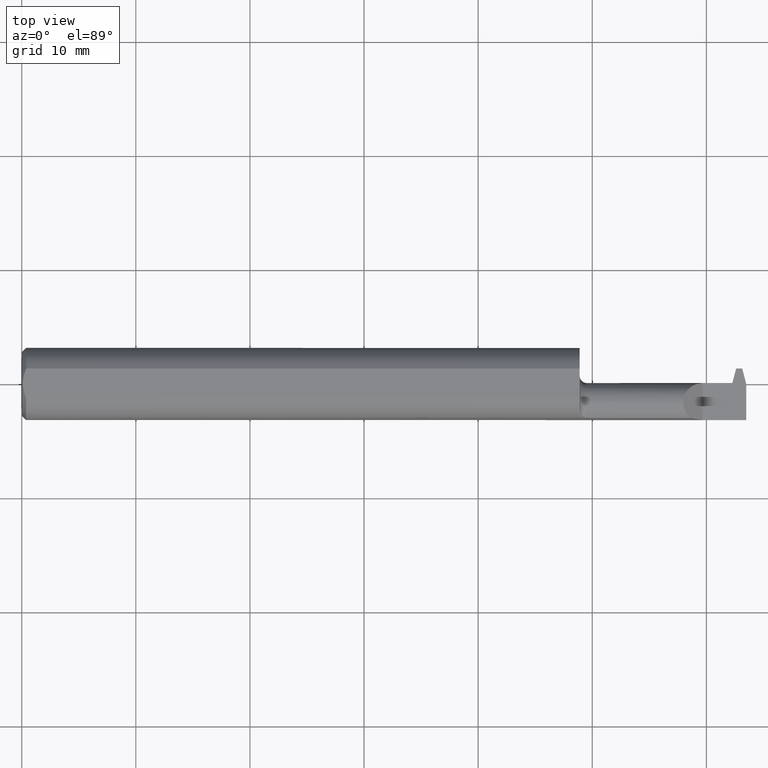
[diagram: clean part render]
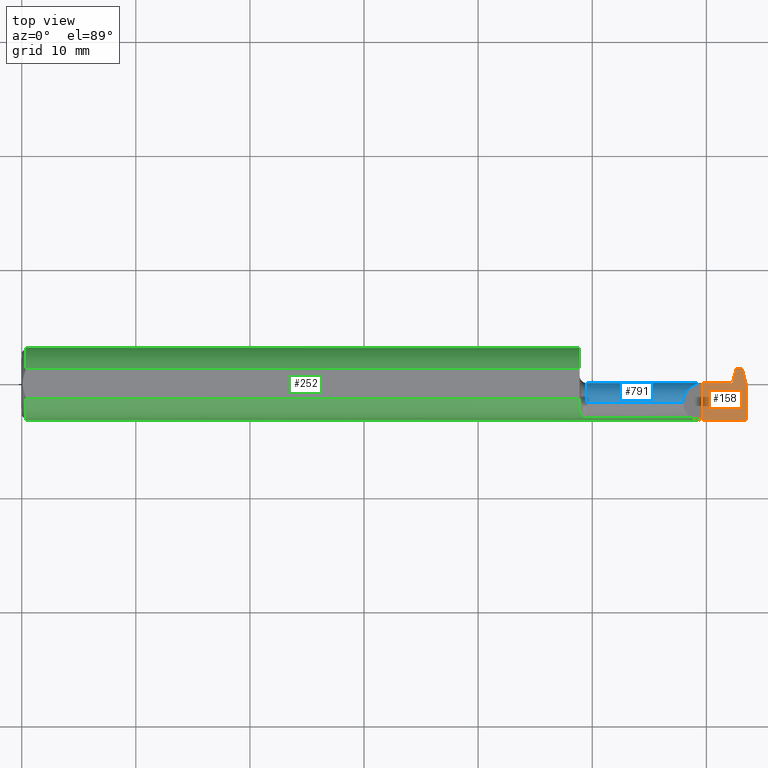
[diagram: same view with three faces highlighted in distinct colors, each labeled with its STEP entity id]
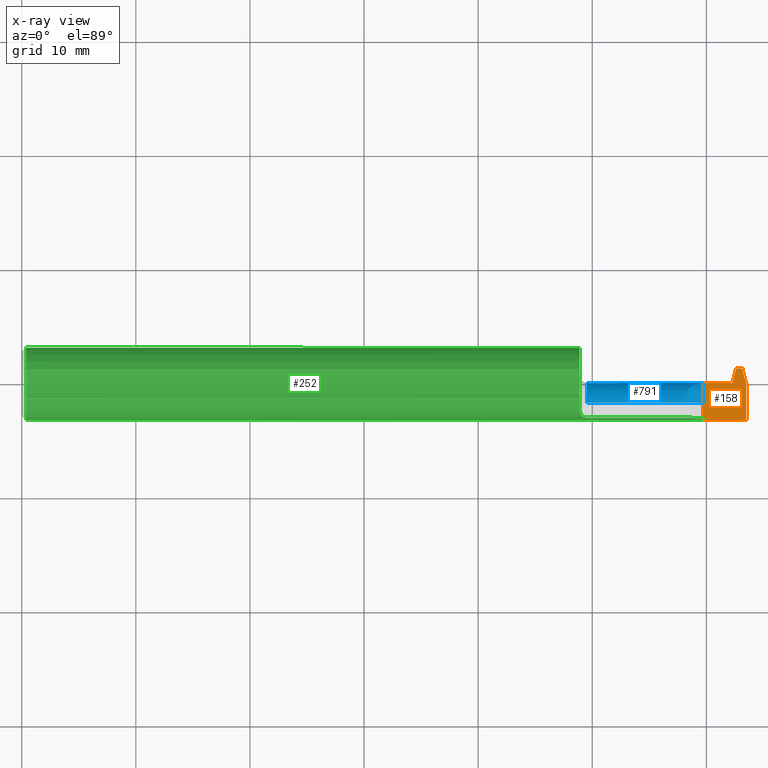
[diagram: x-ray of the same camera — body ghosted, the three highlighted faces saturated]
A machine part, top view with three faces highlighted in distinct colors.
The next image is the same camera in x-ray (body ghosted, the three faces saturated) — at least one of them is partly hidden behind the body in this view.
Their STEP definitions:

[orange] entity #158 — the highlighted planar face has unit normal (-0, 0, -1).
#3 = AXIS2_PLACEMENT_3D ( 'NONE', #531, #584, #139 ) ;
#10 = DIRECTION ( 'NONE',  ( -1.000000000000000000, -9.583308650228410496E-16, 0.000000000000000000 ) ) ;
#15 = EDGE_CURVE ( 'NONE', #806, #910, #346, .T. ) ;
#25 = EDGE_CURVE ( 'NONE', #276, #254, #638, .T. ) ;
#27 = CARTESIAN_POINT ( 'NONE',  ( 2.500000000000000000, -0.0009839833285807519231, 0.000000000000000000 ) ) ;
#31 = CARTESIAN_POINT ( 'NONE',  ( 2.442069120782206060, 0.003149999999999970966, 0.000000000000000000 ) ) ;
#34 = VECTOR ( 'NONE', #514, 39.37007874015748143 ) ;
#49 = LINE ( 'NONE', #289, #635 ) ;
#62 = CARTESIAN_POINT ( 'NONE',  ( 2.464999999999999858, 0.05314999999999989178, -3.367667473011537583E-17 ) ) ;
#66 = CARTESIAN_POINT ( 'NONE',  ( 2.350000000000000089, -0.1248499999999999888, -3.367667473011536351E-17 ) ) ;
#77 = LINE ( 'NONE', #377, #34 ) ;
#81 = DIRECTION ( 'NONE',  ( -1.000000000000000000, -0.000000000000000000, -0.000000000000000000 ) ) ;
#129 = ORIENTED_EDGE ( 'NONE', *, *, #654, .T. ) ;
#139 = DIRECTION ( 'NONE',  ( -1.000000000000000000, 0.000000000000000000, 0.000000000000000000 ) ) ;
#143 = EDGE_CURVE ( 'NONE', #910, #430, #77, .T. ) ;
#148 = ORIENTED_EDGE ( 'NONE', *, *, #866, .F. ) ;
#158 = ADVANCED_FACE ( 'NONE', ( #840 ), #675, .F. ) ;
#173 = EDGE_CURVE ( 'NONE', #355, #254, #836, .T. ) ;
#195 = VECTOR ( 'NONE', #361, 39.37007874015748854 ) ;
#207 = EDGE_CURVE ( 'NONE', #355, #806, #453, .T. ) ;
#254 = VERTEX_POINT ( 'NONE', #27 ) ;
#276 = VERTEX_POINT ( 'NONE', #483 ) ;
#289 = CARTESIAN_POINT ( 'NONE',  ( 2.465568958685582679, 0.05535000000000005194, 0.000000000000000000 ) ) ;
#294 = ORIENTED_EDGE ( 'NONE', *, *, #143, .F. ) ;
#346 = LINE ( 'NONE', #890, #462 ) ;
#355 = VERTEX_POINT ( 'NONE', #631 ) ;
#359 = CARTESIAN_POINT ( 'NONE',  ( 2.452069120782205847, 0.003149999999999971833, 0.000000000000000000 ) ) ;
#361 = DIRECTION ( 'NONE',  ( 0.2503800040544350014, -0.9681476403781094087, 0.000000000000000000 ) ) ;
#377 = CARTESIAN_POINT ( 'NONE',  ( 1.925000000000000044, 0.003149999999999980507, -3.367667473011537583E-17 ) ) ;
#388 = VECTOR ( 'NONE', #966, 39.37007874015748143 ) ;
#422 = ORIENTED_EDGE ( 'NONE', *, *, #173, .T. ) ;
#430 = VERTEX_POINT ( 'NONE', #31 ) ;
#453 = LINE ( 'NONE', #760, #767 ) ;
#458 = CARTESIAN_POINT ( 'NONE',  ( 2.350000000000000089, 0.05314999999999978075, -3.367667473011537583E-17 ) ) ;
#462 = VECTOR ( 'NONE', #814, 39.37007874015748143 ) ;
#478 = EDGE_CURVE ( 'NONE', #724, #860, #49, .T. ) ;
#479 = VECTOR ( 'NONE', #908, 39.37007874015748143 ) ;
#483 = CARTESIAN_POINT ( 'NONE',  ( 2.486000000000000654, 0.05314999999999992647, 0.000000000000000000 ) ) ;
#504 = DIRECTION ( 'NONE',  ( 0.2503800040544323924, 0.9681476403781100748, -0.000000000000000000 ) ) ;
#514 = DIRECTION ( 'NONE',  ( 1.000000000000000000, 0.000000000000000000, 0.000000000000000000 ) ) ;
#531 = CARTESIAN_POINT ( 'NONE',  ( 2.350000000000000089, 0.1499999999999999944, -3.367667473011537583E-17 ) ) ;
#566 = ORIENTED_EDGE ( 'NONE', *, *, #478, .F. ) ;
#584 = DIRECTION ( 'NONE',  ( -0.000000000000000000, 0.000000000000000000, -1.000000000000000000 ) ) ;
#614 = LINE ( 'NONE', #458, #768 ) ;
#631 = CARTESIAN_POINT ( 'NONE',  ( 2.500000000000000000, -0.1248499999999999471, -3.367667473011537583E-17 ) ) ;
#635 = VECTOR ( 'NONE', #504, 39.37007874015748143 ) ;
#638 = LINE ( 'NONE', #948, #195 ) ;
#654 = EDGE_CURVE ( 'NONE', #276, #860, #614, .T. ) ;
#666 = LINE ( 'NONE', #359, #388 ) ;
#675 = PLANE ( 'NONE',  #3 ) ;
#676 = ORIENTED_EDGE ( 'NONE', *, *, #25, .F. ) ;
#724 = VERTEX_POINT ( 'NONE', #779 ) ;
#743 = CARTESIAN_POINT ( 'NONE',  ( 2.500000000000000000, 0.1499999999999999944, -3.367667473011537583E-17 ) ) ;
#760 = CARTESIAN_POINT ( 'NONE',  ( 2.500000000000000000, -0.1248500000000000026, -3.367667473011537583E-17 ) ) ;
#767 = VECTOR ( 'NONE', #81, 39.37007874015748143 ) ;
#768 = VECTOR ( 'NONE', #10, 39.37007874015748143 ) ;
#779 = CARTESIAN_POINT ( 'NONE',  ( 2.452069120782205847, 0.003149999999999971833, 0.000000000000000000 ) ) ;
#806 = VERTEX_POINT ( 'NONE', #66 ) ;
#814 = DIRECTION ( 'NONE',  ( -0.000000000000000000, 1.000000000000000000, -0.000000000000000000 ) ) ;
#815 = EDGE_LOOP ( 'NONE', ( #129, #566, #148, #294, #822, #886, #422, #676 ) ) ;
#822 = ORIENTED_EDGE ( 'NONE', *, *, #15, .F. ) ;
#836 = LINE ( 'NONE', #743, #479 ) ;
#840 = FACE_OUTER_BOUND ( 'NONE', #815, .T. ) ;
#860 = VERTEX_POINT ( 'NONE', #62 ) ;
#866 = EDGE_CURVE ( 'NONE', #430, #724, #666, .T. ) ;
#886 = ORIENTED_EDGE ( 'NONE', *, *, #207, .F. ) ;
#890 = CARTESIAN_POINT ( 'NONE',  ( 2.350000000000000089, 0.1499999999999999944, -3.367667473011537583E-17 ) ) ;
#908 = DIRECTION ( 'NONE',  ( -0.000000000000000000, 1.000000000000000000, -0.000000000000000000 ) ) ;
#910 = VERTEX_POINT ( 'NONE', #935 ) ;
#935 = CARTESIAN_POINT ( 'NONE',  ( 2.350000000000000089, 0.003149999999999971833, -3.367667473011536351E-17 ) ) ;
#948 = CARTESIAN_POINT ( 'NONE',  ( 2.485431041314417833, 0.05535000000000005194, 0.000000000000000000 ) ) ;
#966 = DIRECTION ( 'NONE',  ( 1.000000000000000000, 1.067128122525114190E-16, -0.000000000000000000 ) ) ;

[blue] entity #791 — the highlighted cylindrical surface (edge-blend (fillet) strip) has radius 1.7145 mm, axis along (-1, -0, -0).
#1 = DIRECTION ( 'NONE',  ( -1.000000000000000000, -0.000000000000000000, -0.000000000000000000 ) ) ;
#13 = EDGE_CURVE ( 'NONE', #71, #970, #798, .T. ) ;
#20 = DIRECTION ( 'NONE',  ( 1.000000000000000000, 0.000000000000000000, 0.000000000000000000 ) ) ;
#22 = CARTESIAN_POINT ( 'NONE',  ( 2.438170679457906775, 0.001221809097012123728, -0.01856365049595226635 ) ) ;
#31 = CARTESIAN_POINT ( 'NONE',  ( 2.442069120782206060, 0.003149999999999970966, 0.000000000000000000 ) ) ;
#34 = VECTOR ( 'NONE', #514, 39.37007874015748143 ) ;
#37 = CIRCLE ( 'NONE', #572, 0.06750000000000001832 ) ;
#50 = VECTOR ( 'NONE', #550, 39.37007874015748143 ) ;
#57 = EDGE_CURVE ( 'NONE', #503, #695, #780, .T. ) ;
#59 = VERTEX_POINT ( 'NONE', #968 ) ;
#69 = CARTESIAN_POINT ( 'NONE',  ( 2.450000000000000178, -0.06435000000000004605, -0.06750000000000001832 ) ) ;
#71 = VERTEX_POINT ( 'NONE', #221 ) ;
#77 = LINE ( 'NONE', #377, #34 ) ;
#92 = DIRECTION ( 'NONE',  ( -1.000000000000000000, -0.000000000000000000, -0.000000000000000000 ) ) ;
#93 = CARTESIAN_POINT ( 'NONE',  ( 2.436366871395940326, -0.002552249386265828708, -0.02715304806246833860 ) ) ;
#110 = CARTESIAN_POINT ( 'NONE',  ( 1.949999999999999956, -0.06435000000000003217, -0.06750000000000001832 ) ) ;
#118 = CIRCLE ( 'NONE', #344, 0.06750000000000001832 ) ;
#121 = VERTEX_POINT ( 'NONE', #69 ) ;
#133 = VECTOR ( 'NONE', #92, 39.37007874015748143 ) ;
#140 = EDGE_CURVE ( 'NONE', #286, #739, #634, .T. ) ;
#143 = EDGE_CURVE ( 'NONE', #910, #430, #77, .T. ) ;
#152 = CARTESIAN_POINT ( 'NONE',  ( 2.350000000000000089, 0.003149925925885245243, 9.999999999961100661E-05 ) ) ;
#179 = CARTESIAN_POINT ( 'NONE',  ( 2.446947195464070024, -0.004283243744551786490, -0.03079342126085652526 ) ) ;
#193 = ORIENTED_EDGE ( 'NONE', *, *, #140, .T. ) ;
#209 = CARTESIAN_POINT ( 'NONE',  ( 1.925000000000000044, -0.06435000000000003217, -0.06750000000000001832 ) ) ;
#211 = CARTESIAN_POINT ( 'NONE',  ( 2.350000000000000089, 0.003149925925885245243, 9.999999999961100661E-05 ) ) ;
#221 = CARTESIAN_POINT ( 'NONE',  ( 2.450000000000000178, -0.002552249386265836081, -0.02715304806246837330 ) ) ;
#223 = CARTESIAN_POINT ( 'NONE',  ( 2.350000000000000089, -0.06435000000000003217, 0.000000000000000000 ) ) ;
#235 = EDGE_CURVE ( 'NONE', #739, #506, #459, .T. ) ;
#247 = EDGE_CURVE ( 'NONE', #59, #286, #251, .T. ) ;
#251 = LINE ( 'NONE', #769, #133 ) ;
#266 = ORIENTED_EDGE ( 'NONE', *, *, #379, .T. ) ;
#272 = CARTESIAN_POINT ( 'NONE',  ( 2.282599999999999962, -0.06435000000000003217, 0.06750000000000001832 ) ) ;
#286 = VERTEX_POINT ( 'NONE', #179 ) ;
#288 = FACE_OUTER_BOUND ( 'NONE', #580, .T. ) ;
#290 = CARTESIAN_POINT ( 'NONE',  ( 1.925000000000000044, -0.002552249386265908072, -0.02715304806246850514 ) ) ;
#299 = EDGE_CURVE ( 'NONE', #506, #121, #816, .T. ) ;
#301 = EDGE_CURVE ( 'NONE', #970, #430, #567, .T. ) ;
#311 = DIRECTION ( 'NONE',  ( -1.000000000000000000, -0.000000000000000000, -0.000000000000000000 ) ) ;
#316 = VECTOR ( 'NONE', #512, 39.37007874015748143 ) ;
#317 = DIRECTION ( 'NONE',  ( 0.000000000000000000, 0.000000000000000000, -1.000000000000000000 ) ) ;
#319 = VERTEX_POINT ( 'NONE', #787 ) ;
#330 = AXIS2_PLACEMENT_3D ( 'NONE', #786, #405, #708 ) ;
#334 = VERTEX_POINT ( 'NONE', #110 ) ;
#342 = ORIENTED_EDGE ( 'NONE', *, *, #301, .F. ) ;
#344 = AXIS2_PLACEMENT_3D ( 'NONE', #496, #802, #653 ) ;
#377 = CARTESIAN_POINT ( 'NONE',  ( 1.925000000000000044, 0.003149999999999980507, -3.367667473011537583E-17 ) ) ;
#379 = EDGE_CURVE ( 'NONE', #121, #334, #487, .T. ) ;
#392 = CARTESIAN_POINT ( 'NONE',  ( 2.436366871395940326, -0.002552249386265828708, -0.02715304806246833860 ) ) ;
#395 = CARTESIAN_POINT ( 'NONE',  ( 1.949999999999999956, -0.06435000000000003217, 0.000000000000000000 ) ) ;
#405 = DIRECTION ( 'NONE',  ( -1.000000000000000000, -0.000000000000000000, -0.000000000000000000 ) ) ;
#410 = ORIENTED_EDGE ( 'NONE', *, *, #235, .T. ) ;
#430 = VERTEX_POINT ( 'NONE', #31 ) ;
#438 = EDGE_CURVE ( 'NONE', #71, #59, #118, .T. ) ;
#445 = DIRECTION ( 'NONE',  ( 0.000000000000000000, 0.000000000000000000, 1.000000000000000000 ) ) ;
#459 = LINE ( 'NONE', #934, #50 ) ;
#475 = CARTESIAN_POINT ( 'NONE',  ( 2.450000000000000178, -0.06435000000000003217, 0.000000000000000000 ) ) ;
#482 = CYLINDRICAL_SURFACE ( 'NONE', #330, 0.06750000000000001832 ) ;
#487 = LINE ( 'NONE', #209, #832 ) ;
#488 = CARTESIAN_POINT ( 'NONE',  ( 2.310505889776659494, 0.003091416068753647349, 0.03959411022334007740 ) ) ;
#492 = DIRECTION ( 'NONE',  ( -1.000000000000000000, -0.000000000000000000, -0.000000000000000000 ) ) ;
#496 = CARTESIAN_POINT ( 'NONE',  ( 2.450000000000000178, -0.06435000000000003217, 0.000000000000000000 ) ) ;
#503 = VERTEX_POINT ( 'NONE', #152 ) ;
#506 = VERTEX_POINT ( 'NONE', #662 ) ;
#512 = DIRECTION ( 'NONE',  ( -1.000000000000000000, -0.000000000000000000, -0.000000000000000000 ) ) ;
#514 = DIRECTION ( 'NONE',  ( 1.000000000000000000, 0.000000000000000000, 0.000000000000000000 ) ) ;
#525 = EDGE_CURVE ( 'NONE', #695, #319, #898, .T. ) ;
#532 = ORIENTED_EDGE ( 'NONE', *, *, #299, .T. ) ;
#548 = ORIENTED_EDGE ( 'NONE', *, *, #593, .T. ) ;
#550 = DIRECTION ( 'NONE',  ( 1.000000000000000000, 0.000000000000000000, 0.000000000000000000 ) ) ;
#567 =( BOUNDED_CURVE ( )  B_SPLINE_CURVE ( 3, ( #392, #22, #624, #931 ),
 .UNSPECIFIED., .F., .T. ) 
 B_SPLINE_CURVE_WITH_KNOTS ( ( 4, 4 ),
 ( 1.156804228221857134, 1.570796326794912989 ),
 .UNSPECIFIED. ) 
 CURVE ( )  GEOMETRIC_REPRESENTATION_ITEM ( )  RATIONAL_B_SPLINE_CURVE ( ( 1.000000000000000000, 0.9857684695413670983, 0.9857684695413670983, 1.000000000000000000 ) ) 
 REPRESENTATION_ITEM ( '' )  );
#572 = AXIS2_PLACEMENT_3D ( 'NONE', #223, #311, #445 ) ;
#576 = ORIENTED_EDGE ( 'NONE', *, *, #13, .F. ) ;
#580 = EDGE_LOOP ( 'NONE', ( #532, #266, #745, #622, #643, #548, #723, #342, #576, #950, #887, #193, #410 ) ) ;
#589 = CIRCLE ( 'NONE', #911, 0.06750000000000001832 ) ;
#593 = EDGE_CURVE ( 'NONE', #503, #910, #37, .T. ) ;
#604 = AXIS2_PLACEMENT_3D ( 'NONE', #903, #1, #764 ) ;
#611 = DIRECTION ( 'NONE',  ( 0.000000000000000000, 0.000000000000000000, 1.000000000000000000 ) ) ;
#622 = ORIENTED_EDGE ( 'NONE', *, *, #525, .F. ) ;
#624 = CARTESIAN_POINT ( 'NONE',  ( 2.440098870360894789, 0.003149999999999981374, -0.009381965038885680189 ) ) ;
#627 = CARTESIAN_POINT ( 'NONE',  ( 2.282599999999999962, -0.06435000000000003217, 0.06750000000000001832 ) ) ;
#634 = CIRCLE ( 'NONE', #604, 0.06750000000000001832 ) ;
#641 = DIRECTION ( 'NONE',  ( -1.000000000000000000, -0.000000000000000000, -0.000000000000000000 ) ) ;
#643 = ORIENTED_EDGE ( 'NONE', *, *, #57, .F. ) ;
#653 = DIRECTION ( 'NONE',  ( 0.000000000000000000, 0.000000000000000000, 1.000000000000000000 ) ) ;
#662 = CARTESIAN_POINT ( 'NONE',  ( 2.450000000000000178, -0.05595768985601804607, -0.06697625796091642714 ) ) ;
#681 = EDGE_CURVE ( 'NONE', #334, #319, #589, .T. ) ;
#695 = VERTEX_POINT ( 'NONE', #627 ) ;
#699 = DIRECTION ( 'NONE',  ( -1.000000000000000000, -0.000000000000000000, -0.000000000000000000 ) ) ;
#708 = DIRECTION ( 'NONE',  ( 0.000000000000000000, 0.000000000000000000, 1.000000000000000000 ) ) ;
#723 = ORIENTED_EDGE ( 'NONE', *, *, #143, .T. ) ;
#739 = VERTEX_POINT ( 'NONE', #775 ) ;
#745 = ORIENTED_EDGE ( 'NONE', *, *, #681, .T. ) ;
#755 = CARTESIAN_POINT ( 'NONE',  ( 1.925000000000000044, -0.06435000000000003217, 0.06750000000000001832 ) ) ;
#764 = DIRECTION ( 'NONE',  ( 0.000000000000000000, 1.770642218115725568E-15, -1.000000000000000000 ) ) ;
#769 = CARTESIAN_POINT ( 'NONE',  ( 1.925000000000000044, -0.004283243744551786490, -0.03079342126085652526 ) ) ;
#775 = CARTESIAN_POINT ( 'NONE',  ( 2.446947195464070024, -0.05595768985601794199, -0.06697625796091639938 ) ) ;
#780 =( BOUNDED_CURVE ( )  B_SPLINE_CURVE ( 3, ( #211, #488, #794, #272 ),
 .UNSPECIFIED., .F., .T. ) 
 B_SPLINE_CURVE_WITH_KNOTS ( ( 4, 4 ),
 ( 4.713870462408088713, 6.283185307179586232 ),
 .UNSPECIFIED. ) 
 CURVE ( )  GEOMETRIC_REPRESENTATION_ITEM ( )  RATIONAL_B_SPLINE_CURVE ( ( 1.000000000000000000, 0.8050869134249070136, 0.8050869134249070136, 1.000000000000000000 ) ) 
 REPRESENTATION_ITEM ( '' )  );
#786 = CARTESIAN_POINT ( 'NONE',  ( 1.925000000000000044, -0.06435000000000003217, 0.000000000000000000 ) ) ;
#787 = CARTESIAN_POINT ( 'NONE',  ( 1.949999999999999956, -0.06435000000000003217, 0.06750000000000001832 ) ) ;
#791 = ADVANCED_FACE ( 'NONE', ( #288 ), #482, .T. ) ;
#794 = CARTESIAN_POINT ( 'NONE',  ( 2.282599999999999962, -0.02485584643600085783, 0.06749999999999999056 ) ) ;
#798 = LINE ( 'NONE', #290, #939 ) ;
#802 = DIRECTION ( 'NONE',  ( -1.000000000000000000, -0.000000000000000000, -0.000000000000000000 ) ) ;
#816 = CIRCLE ( 'NONE', #975, 0.06750000000000001832 ) ;
#832 = VECTOR ( 'NONE', #641, 39.37007874015748143 ) ;
#887 = ORIENTED_EDGE ( 'NONE', *, *, #247, .T. ) ;
#898 = LINE ( 'NONE', #755, #316 ) ;
#903 = CARTESIAN_POINT ( 'NONE',  ( 2.446947195464070024, -0.06435000000000003217, 0.000000000000000000 ) ) ;
#910 = VERTEX_POINT ( 'NONE', #935 ) ;
#911 = AXIS2_PLACEMENT_3D ( 'NONE', #395, #20, #317 ) ;
#931 = CARTESIAN_POINT ( 'NONE',  ( 2.442069120782206060, 0.003149999999999970966, 0.000000000000000000 ) ) ;
#934 = CARTESIAN_POINT ( 'NONE',  ( 1.925000000000000044, -0.05595768985601794199, -0.06697625796091639938 ) ) ;
#935 = CARTESIAN_POINT ( 'NONE',  ( 2.350000000000000089, 0.003149999999999971833, -3.367667473011536351E-17 ) ) ;
#939 = VECTOR ( 'NONE', #492, 39.37007874015748143 ) ;
#950 = ORIENTED_EDGE ( 'NONE', *, *, #438, .T. ) ;
#968 = CARTESIAN_POINT ( 'NONE',  ( 2.450000000000000178, -0.004283243744551730979, -0.03079342126085642811 ) ) ;
#970 = VERTEX_POINT ( 'NONE', #93 ) ;
#975 = AXIS2_PLACEMENT_3D ( 'NONE', #475, #699, #611 ) ;

[green] entity #252 — the highlighted cylindrical surface (edge-blend (fillet) strip) has radius 3.1712 mm, axis along (-1, -0, -0).
#17 = DIRECTION ( 'NONE',  ( -1.000000000000000000, -0.000000000000000000, -0.000000000000000000 ) ) ;
#24 = VERTEX_POINT ( 'NONE', #58 ) ;
#30 = CARTESIAN_POINT ( 'NONE',  ( 0.01499999999999970281, 0.000000000000000000, 0.000000000000000000 ) ) ;
#43 = ORIENTED_EDGE ( 'NONE', *, *, #750, .T. ) ;
#48 = CARTESIAN_POINT ( 'NONE',  ( 1.938797751365138877, -0.1151316249329346203, 0.04835186460175136536 ) ) ;
#58 = CARTESIAN_POINT ( 'NONE',  ( 1.925000000000000044, -0.08680804195804191215, 0.08973230383429835200 ) ) ;
#66 = CARTESIAN_POINT ( 'NONE',  ( 2.350000000000000089, -0.1248499999999999888, -3.367667473011536351E-17 ) ) ;
#70 = EDGE_CURVE ( 'NONE', #355, #953, #924, .T. ) ;
#74 = EDGE_CURVE ( 'NONE', #953, #473, #312, .T. ) ;
#78 = EDGE_LOOP ( 'NONE', ( #984, #921, #284, #493, #974, #378, #845, #99, #94, #43, #206, #305, #529, #852 ) ) ;
#81 = DIRECTION ( 'NONE',  ( -1.000000000000000000, -0.000000000000000000, -0.000000000000000000 ) ) ;
#83 = LINE ( 'NONE', #721, #495 ) ;
#94 = ORIENTED_EDGE ( 'NONE', *, *, #909, .T. ) ;
#97 = CARTESIAN_POINT ( 'NONE',  ( 1.925000000000000266, -0.09084981605085465373, -0.08582224602856410034 ) ) ;
#99 = ORIENTED_EDGE ( 'NONE', *, *, #367, .F. ) ;
#109 = VERTEX_POINT ( 'NONE', #304 ) ;
#115 = CARTESIAN_POINT ( 'NONE',  ( 2.500000000000000000, 0.000000000000000000, 0.000000000000000000 ) ) ;
#116 = CARTESIAN_POINT ( 'NONE',  ( 1.928561661930269677, -0.1044486834845270024, 0.06860236071768735511 ) ) ;
#130 = CARTESIAN_POINT ( 'NONE',  ( 2.500000000000000000, -0.05124158467494929065, 0.1138500000000000068 ) ) ;
#135 = CIRCLE ( 'NONE', #399, 0.1248500000000000026 ) ;
#174 = CYLINDRICAL_SURFACE ( 'NONE', #182, 0.1248500000000000026 ) ;
#182 = AXIS2_PLACEMENT_3D ( 'NONE', #401, #17, #256 ) ;
#184 = VECTOR ( 'NONE', #677, 39.37007874015748143 ) ;
#185 = CARTESIAN_POINT ( 'NONE',  ( 1.949999999999999956, -0.1178880730380729852, -0.04110869415792685333 ) ) ;
#187 = DIRECTION ( 'NONE',  ( 1.000000000000000000, 0.000000000000000000, 0.000000000000000000 ) ) ;
#188 = CARTESIAN_POINT ( 'NONE',  ( 2.336004490154644841, -0.1248387500886322388, 0.01409550984535482172 ) ) ;
#196 = CARTESIAN_POINT ( 'NONE',  ( 2.350000000000000089, -0.1248499599519359016, 9.999999999961100661E-05 ) ) ;
#198 = CIRCLE ( 'NONE', #282, 0.1248500000000000026 ) ;
#202 = CARTESIAN_POINT ( 'NONE',  ( 1.925000000000000266, -0.09084801577314524645, 0.08582398763750828663 ) ) ;
#206 = ORIENTED_EDGE ( 'NONE', *, *, #640, .T. ) ;
#207 = EDGE_CURVE ( 'NONE', #355, #806, #453, .T. ) ;
#216 = CIRCLE ( 'NONE', #511, 0.1248500000000000026 ) ;
#220 = CARTESIAN_POINT ( 'NONE',  ( 1.925000000000000044, 0.000000000000000000, 0.000000000000000000 ) ) ;
#233 = DIRECTION ( 'NONE',  ( 1.000000000000000000, 0.000000000000000000, 0.000000000000000000 ) ) ;
#246 = CIRCLE ( 'NONE', #621, 0.1248500000000000026 ) ;
#252 = ADVANCED_FACE ( 'NONE', ( #859 ), #174, .T. ) ;
#256 = DIRECTION ( 'NONE',  ( 0.000000000000000000, 0.000000000000000000, 1.000000000000000000 ) ) ;
#268 = CARTESIAN_POINT ( 'NONE',  ( 1.932148820116562860, -0.1099047179638918265, 0.05947070158462895717 ) ) ;
#269 = DIRECTION ( 'NONE',  ( 1.000000000000000000, 0.000000000000000000, 0.000000000000000000 ) ) ;
#277 = CARTESIAN_POINT ( 'NONE',  ( 1.947138575833328611, -0.1178880730380729991, 0.04110869415792683251 ) ) ;
#282 = AXIS2_PLACEMENT_3D ( 'NONE', #30, #644, #790 ) ;
#284 = ORIENTED_EDGE ( 'NONE', *, *, #207, .T. ) ;
#296 = CARTESIAN_POINT ( 'NONE',  ( 0.01499999999999970281, 0.000000000000000000, -0.1248500000000000026 ) ) ;
#304 = CARTESIAN_POINT ( 'NONE',  ( 0.01499999999999970281, 0.05124158467494929065, 0.1138500000000000068 ) ) ;
#305 = ORIENTED_EDGE ( 'NONE', *, *, #748, .T. ) ;
#312 = LINE ( 'NONE', #979, #847 ) ;
#314 = EDGE_CURVE ( 'NONE', #431, #473, #409, .T. ) ;
#324 = DIRECTION ( 'NONE',  ( 0.000000000000000000, 0.000000000000000000, 1.000000000000000000 ) ) ;
#325 = CARTESIAN_POINT ( 'NONE',  ( 1.934341522824309489, -0.1122386781385961430, -0.05488888332692708205 ) ) ;
#336 = CARTESIAN_POINT ( 'NONE',  ( 1.928579630862569783, -0.1044777942651883146, -0.06855471305740289123 ) ) ;
#350 = VERTEX_POINT ( 'NONE', #559 ) ;
#355 = VERTEX_POINT ( 'NONE', #631 ) ;
#358 = VERTEX_POINT ( 'NONE', #875 ) ;
#360 = CARTESIAN_POINT ( 'NONE',  ( 2.350000000000000089, 0.000000000000000000, 0.000000000000000000 ) ) ;
#367 = EDGE_CURVE ( 'NONE', #402, #24, #246, .T. ) ;
#378 = ORIENTED_EDGE ( 'NONE', *, *, #906, .F. ) ;
#380 = CARTESIAN_POINT ( 'NONE',  ( 2.187500000000000000, -0.1178880730380729852, 0.04110869415792685333 ) ) ;
#381 = DIRECTION ( 'NONE',  ( 0.000000000000000000, 0.000000000000000000, -1.000000000000000000 ) ) ;
#384 = CARTESIAN_POINT ( 'NONE',  ( 2.308991305842072794, -0.1178880730380730268, 0.04110869415792675619 ) ) ;
#391 = CARTESIAN_POINT ( 'NONE',  ( 0.01499999999999970281, 0.000000000000000000, 0.000000000000000000 ) ) ;
#399 = AXIS2_PLACEMENT_3D ( 'NONE', #391, #533, #610 ) ;
#401 = CARTESIAN_POINT ( 'NONE',  ( 2.500000000000000000, 0.000000000000000000, 0.000000000000000000 ) ) ;
#402 = VERTEX_POINT ( 'NONE', #792 ) ;
#409 = B_SPLINE_CURVE_WITH_KNOTS ( 'NONE', 3,
 ( #926, #97, #782, #706, #336, #628, #325, #619, #916, #554, #862, #185 ),
 .UNSPECIFIED., .F., .F.,
 ( 4, 2, 2, 2, 2, 4 ),
 ( 0.000000000000000000, 0.0004231261345662541500, 0.0008462522691325083000, 0.001269378403698762396, 0.001480941470981889715, 0.001692504538265017251 ),
 .UNSPECIFIED. ) ;
#415 = CARTESIAN_POINT ( 'NONE',  ( 1.927257066675622799, -0.1013963922970315401, 0.07304981880275966677 ) ) ;
#417 = VECTOR ( 'NONE', #432, 39.37007874015748143 ) ;
#418 = CARTESIAN_POINT ( 'NONE',  ( 2.322206397681024992, -0.1224963014591190363, 0.02789360231897465570 ) ) ;
#420 = EDGE_CURVE ( 'NONE', #454, #702, #985, .T. ) ;
#423 = CARTESIAN_POINT ( 'NONE',  ( 1.925000000000000044, 0.000000000000000000, 0.000000000000000000 ) ) ;
#431 = VERTEX_POINT ( 'NONE', #884 ) ;
#432 = DIRECTION ( 'NONE',  ( -1.000000000000000000, -0.000000000000000000, -0.000000000000000000 ) ) ;
#435 = VERTEX_POINT ( 'NONE', #946 ) ;
#442 = B_SPLINE_CURVE_WITH_KNOTS ( 'NONE', 3,
 ( #562, #277, #945, #651, #48, #883, #268, #116, #415, #500, #202, #807 ),
 .UNSPECIFIED., .F., .F.,
 ( 4, 2, 2, 2, 2, 4 ),
 ( 0.000000000000000000, 0.0002139781332481023612, 0.0004279562664962047224, 0.0008559125329924097700, 0.001283868799488614709, 0.001711825065984819974 ),
 .UNSPECIFIED. ) ;
#449 = CIRCLE ( 'NONE', #941, 0.1248500000000000026 ) ;
#453 = LINE ( 'NONE', #760, #767 ) ;
#454 = VERTEX_POINT ( 'NONE', #731 ) ;
#473 = VERTEX_POINT ( 'NONE', #889 ) ;
#493 = ORIENTED_EDGE ( 'NONE', *, *, #609, .T. ) ;
#495 = VECTOR ( 'NONE', #187, 39.37007874015748143 ) ;
#500 = CARTESIAN_POINT ( 'NONE',  ( 1.925472843869164397, -0.09461185655952933371, 0.08164619401006140142 ) ) ;
#511 = AXIS2_PLACEMENT_3D ( 'NONE', #360, #657, #324 ) ;
#517 = DIRECTION ( 'NONE',  ( 1.000000000000000000, 0.000000000000000000, 0.000000000000000000 ) ) ;
#529 = ORIENTED_EDGE ( 'NONE', *, *, #563, .F. ) ;
#533 = DIRECTION ( 'NONE',  ( 1.000000000000000000, -0.000000000000000000, -0.000000000000000000 ) ) ;
#554 = CARTESIAN_POINT ( 'NONE',  ( 1.944569448206967532, -0.1173612273236402659, -0.04263257538414207820 ) ) ;
#559 = CARTESIAN_POINT ( 'NONE',  ( 1.949999999999999956, -0.1178880730380729852, 0.04110869415792685333 ) ) ;
#561 = VERTEX_POINT ( 'NONE', #296 ) ;
#562 = CARTESIAN_POINT ( 'NONE',  ( 1.949999999999999956, -0.1178880730380729852, 0.04110869415792685333 ) ) ;
#563 = EDGE_CURVE ( 'NONE', #431, #435, #449, .T. ) ;
#574 = DIRECTION ( 'NONE',  ( 0.000000000000000000, 0.000000000000000000, -1.000000000000000000 ) ) ;
#609 = EDGE_CURVE ( 'NONE', #806, #454, #216, .T. ) ;
#610 = DIRECTION ( 'NONE',  ( 0.000000000000000000, 0.000000000000000000, -1.000000000000000000 ) ) ;
#619 = CARTESIAN_POINT ( 'NONE',  ( 1.938805720551186162, -0.1151363458569193837, -0.04834088676794719153 ) ) ;
#621 = AXIS2_PLACEMENT_3D ( 'NONE', #423, #269, #574 ) ;
#628 = CARTESIAN_POINT ( 'NONE',  ( 1.932139659934243969, -0.1098890007994705875, -0.05949592994647465855 ) ) ;
#631 = CARTESIAN_POINT ( 'NONE',  ( 2.500000000000000000, -0.1248499999999999471, -3.367667473011537583E-17 ) ) ;
#637 = CARTESIAN_POINT ( 'NONE',  ( 2.308991305842072794, -0.1178880730380730268, 0.04110869415792675619 ) ) ;
#640 = EDGE_CURVE ( 'NONE', #561, #109, #135, .T. ) ;
#644 = DIRECTION ( 'NONE',  ( 1.000000000000000000, -0.000000000000000000, -0.000000000000000000 ) ) ;
#651 = CARTESIAN_POINT ( 'NONE',  ( 1.940471370292705000, -0.1159916994806585028, 0.04622948612845707850 ) ) ;
#657 = DIRECTION ( 'NONE',  ( -1.000000000000000000, -0.000000000000000000, -0.000000000000000000 ) ) ;
#663 = DIRECTION ( 'NONE',  ( -1.000000000000000000, -0.000000000000000000, -0.000000000000000000 ) ) ;
#677 = DIRECTION ( 'NONE',  ( 1.000000000000000000, 0.000000000000000000, 0.000000000000000000 ) ) ;
#694 = CARTESIAN_POINT ( 'NONE',  ( 2.500000000000000000, -0.1178880730380729852, -0.04110869415792685333 ) ) ;
#702 = VERTEX_POINT ( 'NONE', #384 ) ;
#706 = CARTESIAN_POINT ( 'NONE',  ( 1.927244443432142518, -0.1013644936721858902, -0.07309500289283984986 ) ) ;
#721 = CARTESIAN_POINT ( 'NONE',  ( 2.500000000000000000, 0.05124158467494929065, 0.1138500000000000068 ) ) ;
#731 = CARTESIAN_POINT ( 'NONE',  ( 2.350000000000000089, -0.1248499599519359016, 9.999999999961100661E-05 ) ) ;
#748 = EDGE_CURVE ( 'NONE', #109, #435, #83, .T. ) ;
#750 = EDGE_CURVE ( 'NONE', #358, #561, #198, .T. ) ;
#758 = LINE ( 'NONE', #380, #184 ) ;
#760 = CARTESIAN_POINT ( 'NONE',  ( 2.500000000000000000, -0.1248500000000000026, -3.367667473011537583E-17 ) ) ;
#762 = EDGE_CURVE ( 'NONE', #350, #24, #442, .T. ) ;
#767 = VECTOR ( 'NONE', #81, 39.37007874015748143 ) ;
#782 = CARTESIAN_POINT ( 'NONE',  ( 1.925463484348167054, -0.09455996579217590403, -0.08170711654871570806 ) ) ;
#790 = DIRECTION ( 'NONE',  ( 0.000000000000000000, 0.000000000000000000, -1.000000000000000000 ) ) ;
#792 = CARTESIAN_POINT ( 'NONE',  ( 1.925000000000000044, -0.05124158467494927677, 0.1138500000000000068 ) ) ;
#799 = AXIS2_PLACEMENT_3D ( 'NONE', #115, #517, #899 ) ;
#806 = VERTEX_POINT ( 'NONE', #66 ) ;
#807 = CARTESIAN_POINT ( 'NONE',  ( 1.925000000000000044, -0.08680804195804191215, 0.08973230383429835200 ) ) ;
#845 = ORIENTED_EDGE ( 'NONE', *, *, #762, .T. ) ;
#847 = VECTOR ( 'NONE', #663, 39.37007874015748143 ) ;
#852 = ORIENTED_EDGE ( 'NONE', *, *, #314, .T. ) ;
#859 = FACE_OUTER_BOUND ( 'NONE', #78, .T. ) ;
#862 = CARTESIAN_POINT ( 'NONE',  ( 1.947146851094465392, -0.1178880730380730130, -0.04110869415792674925 ) ) ;
#875 = CARTESIAN_POINT ( 'NONE',  ( 0.01499999999999969413, -0.05124158467494929065, 0.1138500000000000068 ) ) ;
#883 = CARTESIAN_POINT ( 'NONE',  ( 1.934345155916292747, -0.1122401308722703883, 0.05488497975249280458 ) ) ;
#884 = CARTESIAN_POINT ( 'NONE',  ( 1.925000000000000044, -0.08680804195804191215, -0.08973230383429835200 ) ) ;
#888 = LINE ( 'NONE', #130, #417 ) ;
#889 = CARTESIAN_POINT ( 'NONE',  ( 1.949999999999999956, -0.1178880730380729852, -0.04110869415792685333 ) ) ;
#899 = DIRECTION ( 'NONE',  ( 0.000000000000000000, 0.000000000000000000, -1.000000000000000000 ) ) ;
#906 = EDGE_CURVE ( 'NONE', #350, #702, #758, .T. ) ;
#909 = EDGE_CURVE ( 'NONE', #402, #358, #888, .T. ) ;
#916 = CARTESIAN_POINT ( 'NONE',  ( 1.940487603854009535, -0.1159976367288706595, -0.04621409347929126415 ) ) ;
#921 = ORIENTED_EDGE ( 'NONE', *, *, #70, .F. ) ;
#924 = CIRCLE ( 'NONE', #799, 0.1248500000000000026 ) ;
#926 = CARTESIAN_POINT ( 'NONE',  ( 1.925000000000000044, -0.08680804195804191215, -0.08973230383429835200 ) ) ;
#941 = AXIS2_PLACEMENT_3D ( 'NONE', #220, #233, #381 ) ;
#945 = CARTESIAN_POINT ( 'NONE',  ( 1.944575795023727904, -0.1173638605453972278, 0.04262586039006312916 ) ) ;
#946 = CARTESIAN_POINT ( 'NONE',  ( 1.925000000000000044, 0.05124158467494929065, 0.1138500000000000068 ) ) ;
#953 = VERTEX_POINT ( 'NONE', #694 ) ;
#974 = ORIENTED_EDGE ( 'NONE', *, *, #420, .T. ) ;
#979 = CARTESIAN_POINT ( 'NONE',  ( 2.187500000000000000, -0.1178880730380729852, -0.04110869415792685333 ) ) ;
#984 = ORIENTED_EDGE ( 'NONE', *, *, #74, .F. ) ;
#985 =( BOUNDED_CURVE ( )  B_SPLINE_CURVE ( 3, ( #196, #188, #418, #637 ),
 .UNSPECIFIED., .F., .F. ) 
 B_SPLINE_CURVE_WITH_KNOTS ( ( 4, 4 ),
 ( 4.713189941623711299, 5.047913695406924361 ),
 .UNSPECIFIED. ) 
 CURVE ( )  GEOMETRIC_REPRESENTATION_ITEM ( )  RATIONAL_B_SPLINE_CURVE ( ( 1.000000000000000000, 0.9906851070496518474, 0.9906851070496518474, 1.000000000000000000 ) ) 
 REPRESENTATION_ITEM ( '' )  );